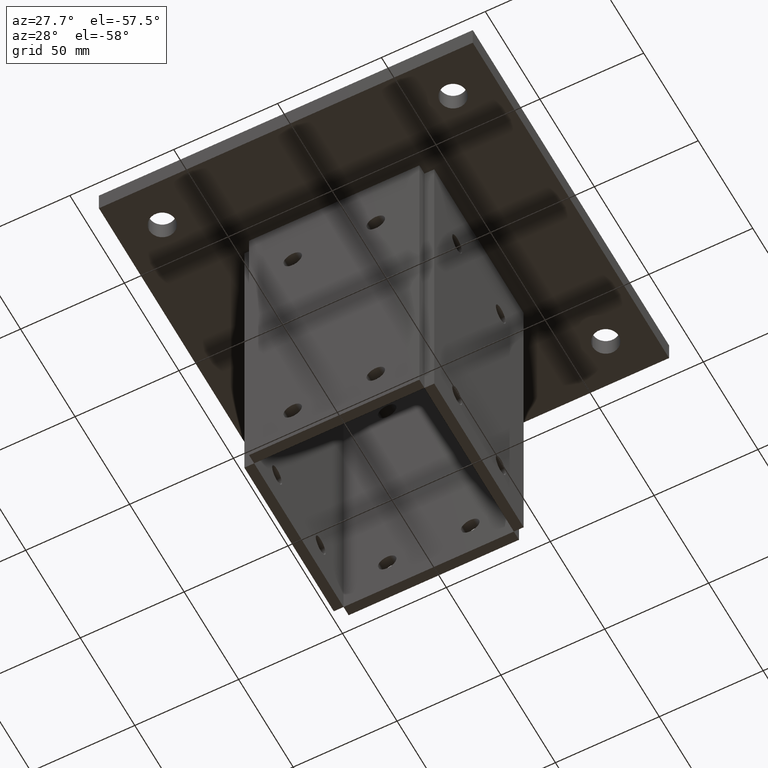
[diagram: clean part render]
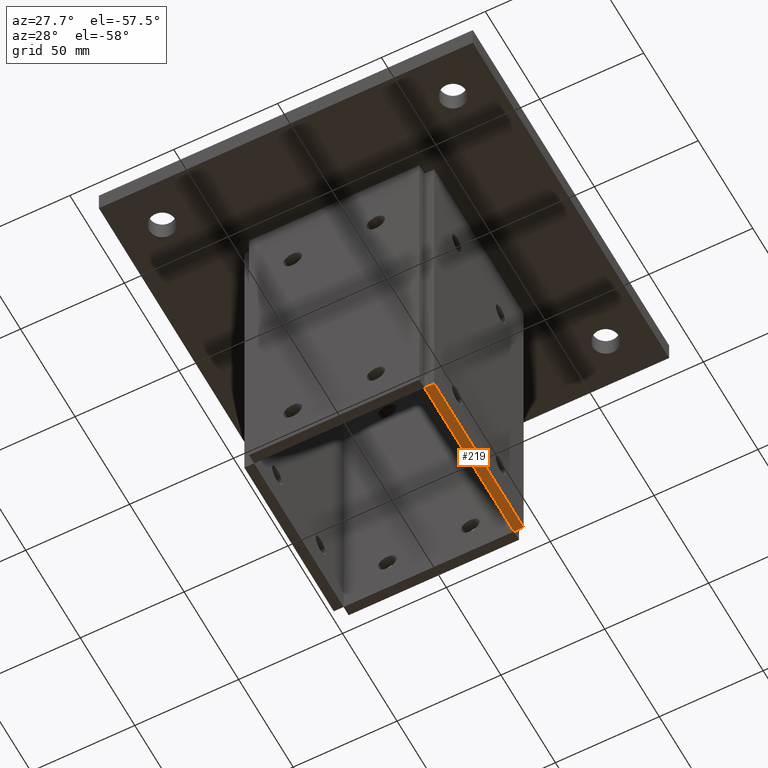
[diagram: same view with one face highlighted and labeled with its STEP entity id]
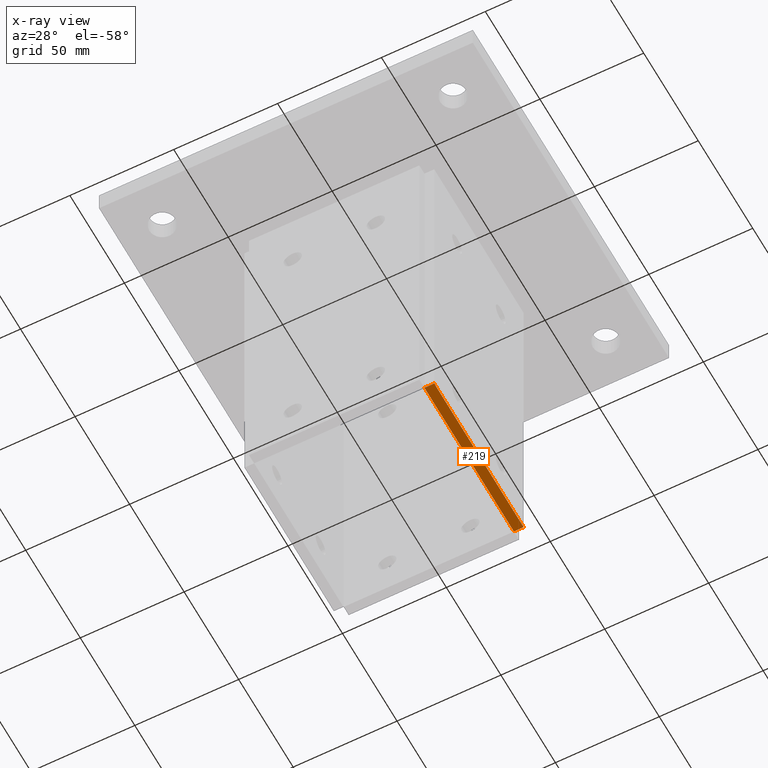
[diagram: x-ray of the same camera — body ghosted, the highlighted face saturated]
A machine part, auxiliary view. The second image highlights one B-rep face of the part: STEP entity #219.
The next image is the same camera in x-ray: the body ghosted, the highlighted face saturated — about 0% of this face is hidden behind the body in this view.
In plain terms, the highlighted planar face has unit normal (0, 0, 1).
Its self-contained STEP definition (entity closure, byte-faithful):
#77 = VERTEX_POINT ( 'NONE', #370 ) ;
#83 = PLANE ( 'NONE',  #818 ) ;
#84 = CARTESIAN_POINT ( 'NONE',  ( -82.00000000000000000, 170.0000000000000000, 0.0000000000000000000 ) ) ;
#85 = DIRECTION ( 'NONE',  ( 0.0000000000000000000, -1.000000000000000000, 0.0000000000000000000 ) ) ;
#86 = DIRECTION ( 'NONE',  ( 1.000000000000000000, 0.0000000000000000000, 0.0000000000000000000 ) ) ;
#126 = VERTEX_POINT ( 'NONE', #380 ) ;
#136 = VERTEX_POINT ( 'NONE', #390 ) ;
#187 = CARTESIAN_POINT ( 'NONE',  ( 0.0000000000000000000, 170.0000000000000000, 0.0000000000000000000 ) ) ;
#219 = ADVANCED_FACE ( 'NONE', ( #477 ), #83, .F. ) ;
#251 = VERTEX_POINT ( 'NONE', #187 ) ;
#370 = CARTESIAN_POINT ( 'NONE',  ( 0.0000000000000000000, 170.0000000000000000, 4.700000000000000200 ) ) ;
#380 = CARTESIAN_POINT ( 'NONE',  ( -82.00000000000000000, 170.0000000000000000, 4.700000000000000200 ) ) ;
#390 = CARTESIAN_POINT ( 'NONE',  ( -82.00000000000000000, 170.0000000000000000, 0.0000000000000000000 ) ) ;
#477 = FACE_OUTER_BOUND ( 'NONE', #1194, .T. ) ;
#677 = LINE ( 'NONE', #985, #679 ) ;
#679 = VECTOR ( 'NONE', #986, 1000.000000000000000 ) ;
#713 = LINE ( 'NONE', #993, #716 ) ;
#716 = VECTOR ( 'NONE', #994, 1000.000000000000000 ) ;
#717 = LINE ( 'NONE', #995, #721 ) ;
#721 = VECTOR ( 'NONE', #996, 1000.000000000000000 ) ;
#724 = LINE ( 'NONE', #997, #727 ) ;
#727 = VECTOR ( 'NONE', #998, 1000.000000000000000 ) ;
#818 = AXIS2_PLACEMENT_3D ( 'NONE', #84, #85, #86 ) ;
#830 = EDGE_CURVE ( 'NONE', #251, #77, #677, .T. ) ;
#834 = EDGE_CURVE ( 'NONE', #136, #126, #713, .T. ) ;
#835 = EDGE_CURVE ( 'NONE', #77, #126, #717, .T. ) ;
#836 = EDGE_CURVE ( 'NONE', #251, #136, #724, .T. ) ;
#985 = CARTESIAN_POINT ( 'NONE',  ( 0.0000000000000000000, 170.0000000000000000, 2.350000000000000100 ) ) ;
#986 = DIRECTION ( 'NONE',  ( 0.0000000000000000000, 0.0000000000000000000, 1.000000000000000000 ) ) ;
#993 = CARTESIAN_POINT ( 'NONE',  ( -82.00000000000000000, 170.0000000000000000, 2.350000000000000100 ) ) ;
#994 = DIRECTION ( 'NONE',  ( 0.0000000000000000000, 0.0000000000000000000, 1.000000000000000000 ) ) ;
#995 = CARTESIAN_POINT ( 'NONE',  ( -41.00000000000000000, 170.0000000000000000, 4.700000000000000200 ) ) ;
#996 = DIRECTION ( 'NONE',  ( -1.000000000000000000, -0.0000000000000000000, -0.0000000000000000000 ) ) ;
#997 = CARTESIAN_POINT ( 'NONE',  ( -41.00000000000000000, 170.0000000000000000, 0.0000000000000000000 ) ) ;
#998 = DIRECTION ( 'NONE',  ( -1.000000000000000000, -0.0000000000000000000, -0.0000000000000000000 ) ) ;
#1194 = EDGE_LOOP ( 'NONE', ( #1276, #1275, #1274, #1273 ) ) ;
#1273 = ORIENTED_EDGE ( 'NONE', *, *, #836, .T. ) ;
#1274 = ORIENTED_EDGE ( 'NONE', *, *, #830, .F. ) ;
#1275 = ORIENTED_EDGE ( 'NONE', *, *, #835, .F. ) ;
#1276 = ORIENTED_EDGE ( 'NONE', *, *, #834, .T. ) ;